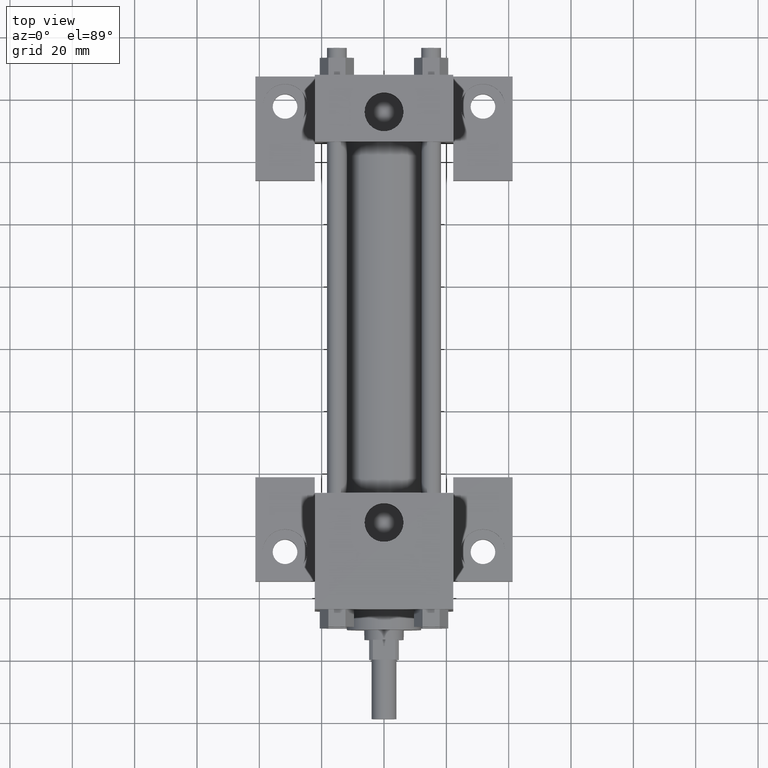
[diagram: clean part render]
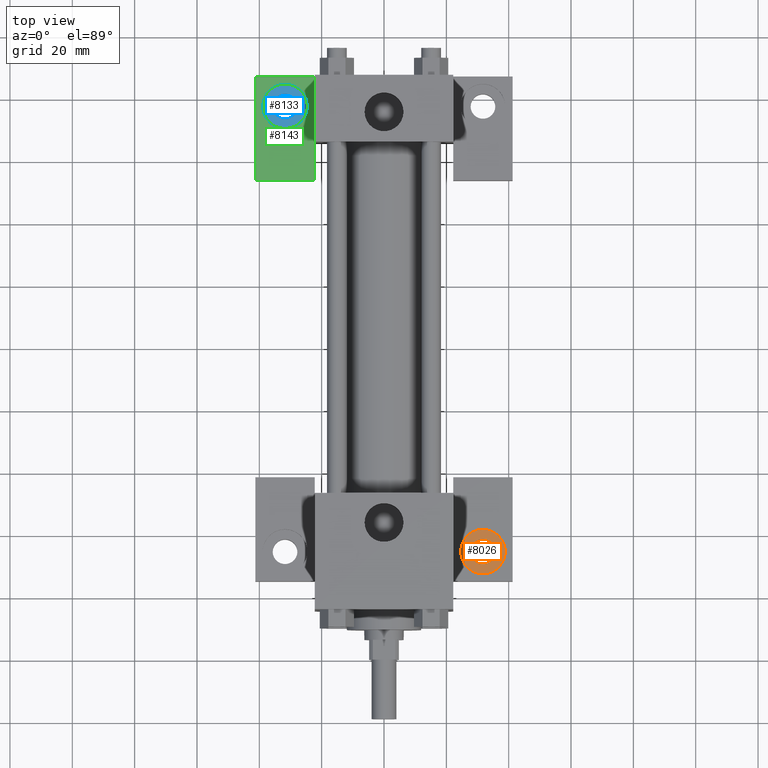
[diagram: same view with three faces highlighted in distinct colors, each labeled with its STEP entity id]
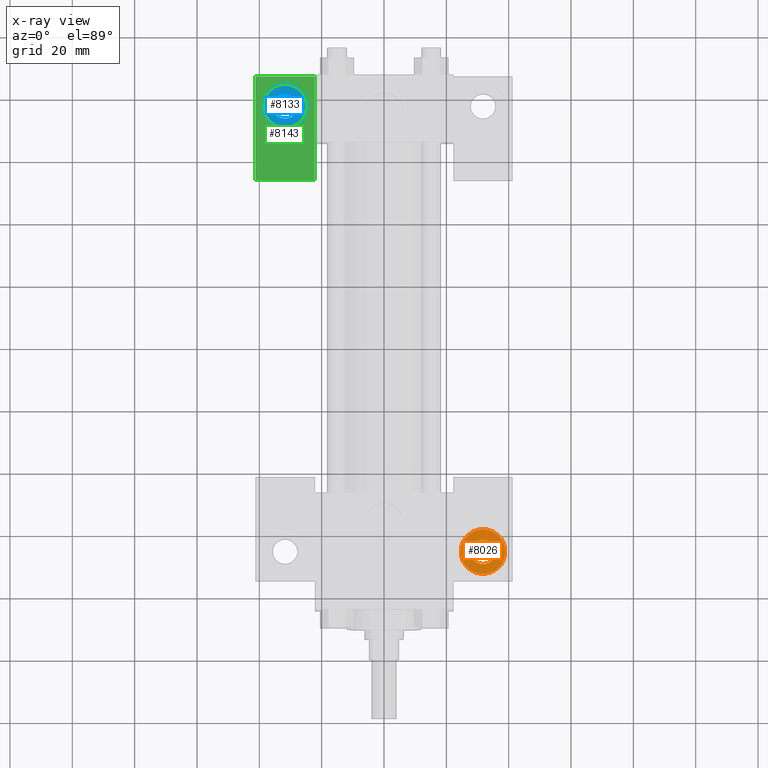
[diagram: x-ray of the same camera — body ghosted, the three highlighted faces saturated]
A machine part, top view with three faces highlighted in distinct colors.
The next image is the same camera in x-ray (body ghosted, the three faces saturated) — at least one of them is partly hidden behind the body in this view.
Their STEP definitions:

[orange] entity #8026 — the highlighted planar face has unit normal (0, 0, -1).
#1408=EDGE_CURVE('',#1414,#1414,#1409,.T.);
#1409=CIRCLE('',#1410,7.143750000E+000);
#1410=AXIS2_PLACEMENT_3D('',#1411,#1412,#1413);
#1411=CARTESIAN_POINT('',(3.175000000E+001,3.492500000E+001,-1.270000000E+001));
#1412=DIRECTION('',(0.0E+000,0.0E+000,1.0E+000));
#1413=DIRECTION('',(0.0E+000,-1.0E+000,0.0E+000));
#1414=VERTEX_POINT('',#1415);
#1415=CARTESIAN_POINT('',(3.175000000E+001,2.778125000E+001,-1.270000000E+001));
#1430=FACE_OUTER_BOUND('',#1432,.T.);
#1431=FACE_BOUND('',#1433,.T.);
#1432=EDGE_LOOP('',(#1434));
#1433=EDGE_LOOP('',(#1435));
#1434=ORIENTED_EDGE('',*,*,#1408,.T.);
#1435=ORIENTED_EDGE('',*,*,#1436,.F.);
#1436=EDGE_CURVE('',#1442,#1442,#1437,.F.);
#1437=CIRCLE('',#1438,3.968750000E+000);
#1438=AXIS2_PLACEMENT_3D('',#1439,#1440,#1441);
#1439=CARTESIAN_POINT('',(3.175000000E+001,3.492500000E+001,-1.270000000E+001));
#1440=DIRECTION('',(0.0E+000,0.0E+000,-1.0E+000));
#1441=DIRECTION('',(-1.0E+000,0.0E+000,0.0E+000));
#1442=VERTEX_POINT('',#1443);
#1443=CARTESIAN_POINT('',(2.778125000E+001,3.492500000E+001,-1.270000000E+001));
#1444=PLANE('',#1445);
#1445=AXIS2_PLACEMENT_3D('',#1446,#1447,#1448);
#1446=CARTESIAN_POINT('',(3.175000000E+001,3.492500000E+001,-1.270000000E+001));
#1447=DIRECTION('',(0.0E+000,0.0E+000,-1.0E+000));
#1448=DIRECTION('',(-1.0E+000,0.0E+000,0.0E+000));
#8026=ADVANCED_FACE('',(#1430,#1431),#1444,.F.);

[blue] entity #8133 — the highlighted planar face has unit normal (0, 0, -1).
#5160=EDGE_CURVE('',#5166,#5166,#5161,.T.);
#5161=CIRCLE('',#5162,7.143750000E+000);
#5162=AXIS2_PLACEMENT_3D('',#5163,#5164,#5165);
#5163=CARTESIAN_POINT('',(-3.175000000E+001,1.778000000E+002,-1.270000000E+001));
#5164=DIRECTION('',(0.0E+000,0.0E+000,1.0E+000));
#5165=DIRECTION('',(0.0E+000,-1.0E+000,0.0E+000));
#5166=VERTEX_POINT('',#5167);
#5167=CARTESIAN_POINT('',(-3.175000000E+001,1.706562500E+002,-1.270000000E+001));
#5182=FACE_OUTER_BOUND('',#5184,.T.);
#5183=FACE_BOUND('',#5185,.T.);
#5184=EDGE_LOOP('',(#5186));
#5185=EDGE_LOOP('',(#5187));
#5186=ORIENTED_EDGE('',*,*,#5160,.T.);
#5187=ORIENTED_EDGE('',*,*,#5188,.F.);
#5188=EDGE_CURVE('',#5194,#5194,#5189,.F.);
#5189=CIRCLE('',#5190,3.968750000E+000);
#5190=AXIS2_PLACEMENT_3D('',#5191,#5192,#5193);
#5191=CARTESIAN_POINT('',(-3.175000000E+001,1.778000000E+002,-1.270000000E+001));
#5192=DIRECTION('',(0.0E+000,0.0E+000,-1.0E+000));
#5193=DIRECTION('',(-1.0E+000,0.0E+000,0.0E+000));
#5194=VERTEX_POINT('',#5195);
#5195=CARTESIAN_POINT('',(-3.571875000E+001,1.778000000E+002,-1.270000000E+001));
#5196=PLANE('',#5197);
#5197=AXIS2_PLACEMENT_3D('',#5198,#5199,#5200);
#5198=CARTESIAN_POINT('',(-3.175000000E+001,1.778000000E+002,-1.270000000E+001));
#5199=DIRECTION('',(0.0E+000,0.0E+000,-1.0E+000));
#5200=DIRECTION('',(-1.0E+000,0.0E+000,0.0E+000));
#8133=ADVANCED_FACE('',(#5182,#5183),#5196,.F.);

[green] entity #8143 — the highlighted planar face has unit normal (0, 0, -1).
#5169=EDGE_CURVE('',#5175,#5175,#5170,.T.);
#5170=CIRCLE('',#5171,7.143750000E+000);
#5171=AXIS2_PLACEMENT_3D('',#5172,#5173,#5174);
#5172=CARTESIAN_POINT('',(-3.175000000E+001,1.778000000E+002,-9.525000000E+000));
#5173=DIRECTION('',(0.0E+000,0.0E+000,-1.0E+000));
#5174=DIRECTION('',(0.0E+000,-1.0E+000,0.0E+000));
#5175=VERTEX_POINT('',#5176);
#5176=CARTESIAN_POINT('',(-3.175000000E+001,1.706562500E+002,-9.525000000E+000));
#5460=FACE_OUTER_BOUND('',#5462,.T.);
#5461=FACE_BOUND('',#5463,.T.);
#5462=EDGE_LOOP('',(#5464));
#5463=EDGE_LOOP('',(#5465,#5466,#5467,#5468,#5469));
#5464=ORIENTED_EDGE('',*,*,#5169,.T.);
#5465=ORIENTED_EDGE('',*,*,#5470,.F.);
#5466=ORIENTED_EDGE('',*,*,#5479,.F.);
#5467=ORIENTED_EDGE('',*,*,#5486,.F.);
#5468=ORIENTED_EDGE('',*,*,#5493,.F.);
#5469=ORIENTED_EDGE('',*,*,#5500,.F.);
#5470=EDGE_CURVE('',#5475,#5476,#5471,.T.);
#5471=LINE('',#5472,#5473);
#5472=CARTESIAN_POINT('',(-2.222500000E+001,1.873250000E+002,-9.525000000E+000));
#5473=VECTOR('',#5474,1.0E+000);
#5474=DIRECTION('',(0.0E+000,-1.0E+000,0.0E+000));
#5475=VERTEX_POINT('',#5477);
#5476=VERTEX_POINT('',#5478);
#5477=CARTESIAN_POINT('',(-2.222500000E+001,1.873250000E+002,-9.525000000E+000));
#5478=CARTESIAN_POINT('',(-2.222500000E+001,1.658937500E+002,-9.525000000E+000));
#5479=EDGE_CURVE('',#5484,#5475,#5480,.T.);
#5480=LINE('',#5481,#5482);
#5481=CARTESIAN_POINT('',(-4.127500000E+001,1.873250000E+002,-9.525000000E+000));
#5482=VECTOR('',#5483,1.0E+000);
#5483=DIRECTION('',(1.0E+000,0.0E+000,0.0E+000));
#5484=VERTEX_POINT('',#5485);
#5485=CARTESIAN_POINT('',(-4.127500000E+001,1.873250000E+002,-9.525000000E+000));
#5486=EDGE_CURVE('',#5491,#5484,#5487,.T.);
#5487=LINE('',#5488,#5489);
#5488=CARTESIAN_POINT('',(-4.127500000E+001,1.539875000E+002,-9.525000000E+000));
#5489=VECTOR('',#5490,1.0E+000);
#5490=DIRECTION('',(0.0E+000,1.0E+000,0.0E+000));
#5491=VERTEX_POINT('',#5492);
#5492=CARTESIAN_POINT('',(-4.127500000E+001,1.539875000E+002,-9.525000000E+000));
#5493=EDGE_CURVE('',#5498,#5491,#5494,.T.);
#5494=LINE('',#5495,#5496);
#5495=CARTESIAN_POINT('',(-2.222500000E+001,1.539875000E+002,-9.525000000E+000));
#5496=VECTOR('',#5497,1.0E+000);
#5497=DIRECTION('',(-1.0E+000,0.0E+000,0.0E+000));
#5498=VERTEX_POINT('',#5499);
#5499=CARTESIAN_POINT('',(-2.222500000E+001,1.539875000E+002,-9.525000000E+000));
#5500=EDGE_CURVE('',#5476,#5498,#5471,.T.);
#5501=PLANE('',#5502);
#5502=AXIS2_PLACEMENT_3D('',#5503,#5504,#5505);
#5503=CARTESIAN_POINT('',(-2.222500000E+001,1.539875000E+002,-9.525000000E+000));
#5504=DIRECTION('',(0.0E+000,0.0E+000,-1.0E+000));
#5505=DIRECTION('',(-1.0E+000,0.0E+000,0.0E+000));
#8143=ADVANCED_FACE('',(#5460,#5461),#5501,.F.);